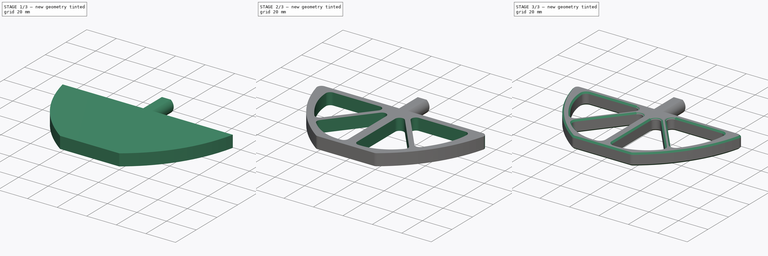
[diagram: build sequence overview — one tinted view per stage of 3, left to right]
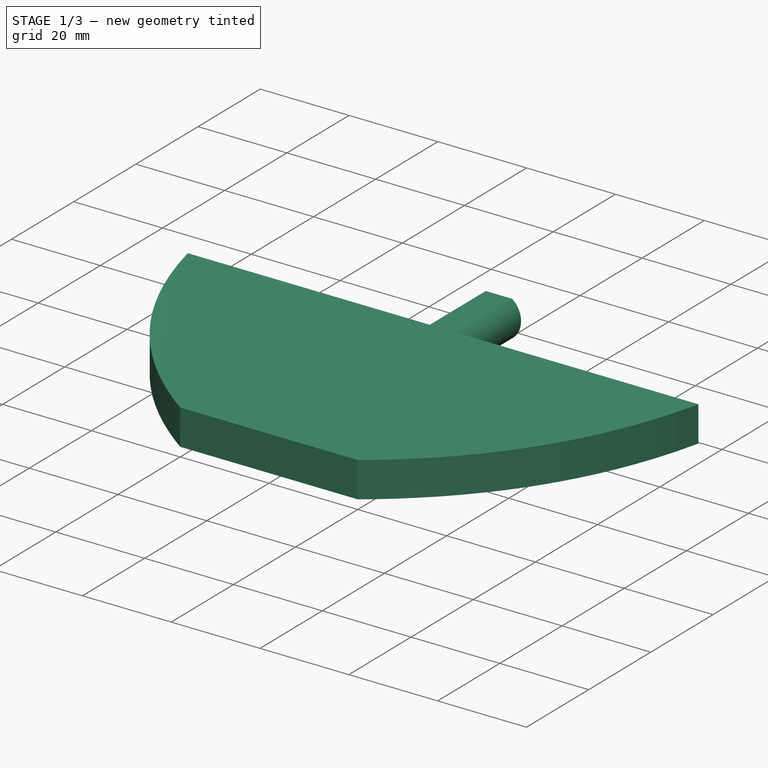
[diagram: stage 1 of 3 — iso view after this stage's code; geometry added in this stage tinted green]
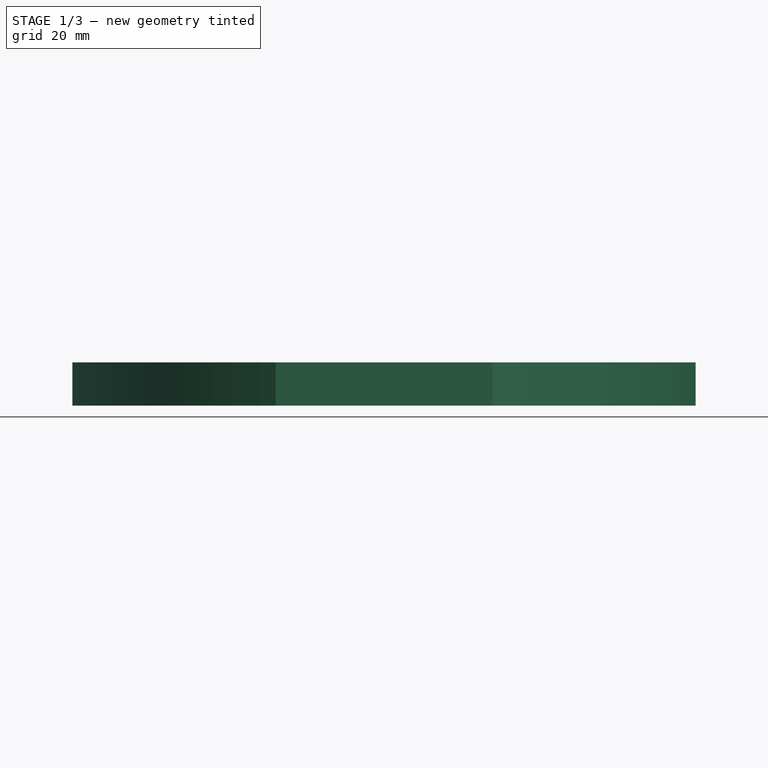
[diagram: stage 1 of 3 — front view after this stage's code; geometry added in this stage tinted green]
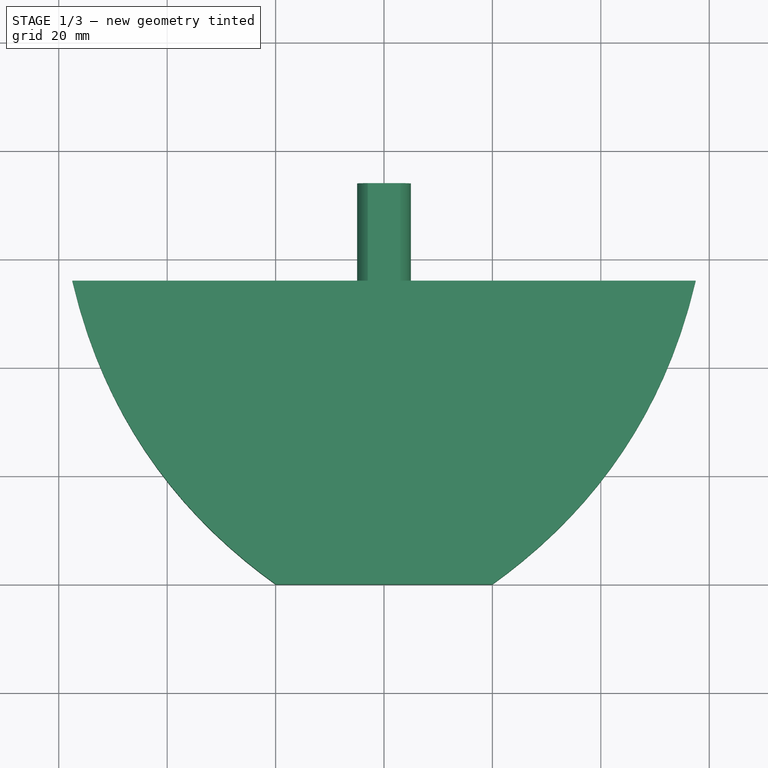
[diagram: stage 1 of 3 — top view after this stage's code; geometry added in this stage tinted green]
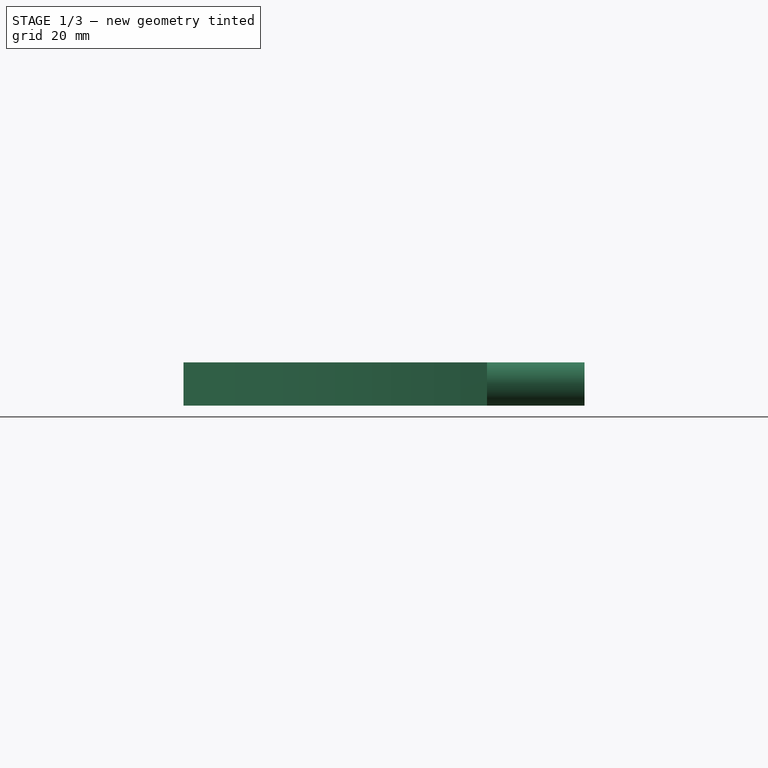
[diagram: stage 1 of 3 — right view after this stage's code; geometry added in this stage tinted green]
FCSTD DOCUMENT  (FreeCAD 0.18R16093 (Git))
Label: sorbetiere_pale
License: All rights reserved
LicenseURL: http://en.wikipedia.org/wiki/All_rights_reserved
objects: Sketcher::SketchObject×3, PartDesign::Pocket×2, PartDesign::Chamfer×2, PartDesign::Pad×1, PartDesign::Fillet×1, PartDesign::Body×1
note: 13 computed .brp shape members not serialized (recipe doc carries the construction recipe); baked Part::Feature solids carry a one-line shape summary decoded from their .brp

FEATURE [Sketcher::SketchObject] Sketch
  MapMode = 5
  Support = -> [XY_Plane]
  sketch-geometry (21):
    g0: LineSegment StartX=0 StartY=74 StartZ=0 EndX=5 EndY=74 EndZ=0
    g1: LineSegment StartX=5 StartY=74 StartZ=0 EndX=5 EndY=56 EndZ=0
    g2: LineSegment StartX=5 StartY=56 StartZ=0 EndX=57.5 EndY=56 EndZ=0
    g3: LineSegment StartX=0 StartY=0 StartZ=0 EndX=20 EndY=0 EndZ=0
    g4: Circle [constr] CenterX=57.5 CenterY=56 CenterZ=0 NormalX=0 NormalY=0 NormalZ=1 AngleXU=0 Radius=6
    g5: Circle [constr] CenterX=49.2674 CenterY=20.977 CenterZ=0 NormalX=0 NormalY=0 NormalZ=1 AngleXU=0 Radius=6
    g6: Circle [constr] CenterX=20 CenterY=0 CenterZ=0 NormalX=0 NormalY=0 NormalZ=1 AngleXU=0 Radius=6
    g7: BSplineCurve PolesCount=3 KnotsCount=2 Degree=2 IsPeriodic=0
    g8: GeomPoint [constr] X=57.5 Y=56 Z=0
    g9: GeomPoint [constr] X=20 Y=0 Z=0
    g10: LineSegment [constr] StartX=0 StartY=96.7919 StartZ=0 EndX=0 EndY=-52.7797 EndZ=0
    g11: LineSegment StartX=0 StartY=74 StartZ=0 EndX=-5 EndY=74 EndZ=0
    g12: LineSegment StartX=-5 StartY=74 StartZ=0 EndX=-5 EndY=56 EndZ=0
    g13: LineSegment StartX=-5 StartY=56 StartZ=0 EndX=-57.5 EndY=56 EndZ=0
    g14: LineSegment StartX=0 StartY=0 StartZ=0 EndX=-20 EndY=0 EndZ=0
    g15: Circle [constr] CenterX=-57.5 CenterY=56 CenterZ=0 NormalX=0 NormalY=0 NormalZ=1 AngleXU=0 Radius=6
    g16: Circle [constr] CenterX=-49.2674 CenterY=20.977 CenterZ=0 NormalX=0 NormalY=0 NormalZ=1 AngleXU=0 Radius=6
    g17: Circle [constr] CenterX=-20 CenterY=0 CenterZ=0 NormalX=0 NormalY=0 NormalZ=1 AngleXU=0 Radius=6
    g18: BSplineCurve PolesCount=3 KnotsCount=2 Degree=2 IsPeriodic=0
    g19: GeomPoint [constr] X=-57.5 Y=56 Z=0
    g20: GeomPoint [constr] X=-20 Y=0 Z=0
  constraints (36):
    c: Coincident(g0,g1)
    c: Vertical(g1)
    c: Horizontal(g0)
    c: DistanceX(g0,g0) = 5
    c: DistanceY(g1,g1) = 18
    c: PointOnObject(g0,g-2)
    c: Horizontal(g2)
    c: Coincident(g1,g2)
    c: DistanceX(g-1,g2) = 57.5
    c: Horizontal(g3)
    c: Coincident(g3,g-1)
    c: DistanceX(g-1,g3) = 20
    c: Radius(g4) = 6
    c: Equal(g4,g5)
    c: Equal(g4,g6)
    c: InternalAlignment(g4,g7)
    c: InternalAlignment(g5,g7)
    c: InternalAlignment(g6,g7)
    c: InternalAlignment(g8,g7)
    c: InternalAlignment(g9,g7)
    c: Coincident(g7,g2)
    c: Coincident(g3,g7)
    c: DistanceY(g-1,g1) = 56
    c: Vertical(g10)
    c: PointOnObject(g10,g-2)
    c: Coincident(g11,g12)
    c: Vertical(g12)
    c: Horizontal(g11)
    c: Horizontal(g13)
    c: Coincident(g12,g13)
    c: Horizontal(g14)
    c: Radius(g15) = 6
    c: Equal(g15,g16)
    c: Equal(g15,g17)
    c: Coincident(g18,g13)
    c: Coincident(g14,g18)
FEATURE [PartDesign::Pad] Pad  label="Volume principal"
  Length = 8
  Length2 = 100
  Profile = -> Sketch
  Type = 0
FEATURE [Sketcher::SketchObject] Sketch001
  ExternalGeometry = -> [Pad]
  MapMode = 5
  Placement = pos=(0,74,0) rot=(0,0.707107,0.707107;3.14159rad)
  Support = -> [Pad]
  sketch-geometry (11):
    g0: LineSegment StartX=2e-16 StartY=8 StartZ=0 EndX=-3 EndY=8 EndZ=0
    g1: ArcOfCircle CenterX=0.1 CenterY=4 CenterZ=0 NormalX=0 NormalY=0 NormalZ=1 AngleXU=0 Radius=5.06063 StartAngle=2.23011 EndAngle=4.05308
    g2: LineSegment StartX=-3 StartY=2.2e-15 StartZ=0 EndX=0 EndY=2.2e-15 EndZ=0
    g3: LineSegment [constr] StartX=0 StartY=13.4081 StartZ=0 EndX=0 EndY=-5.11794 EndZ=0
    g4: LineSegment StartX=-2e-16 StartY=8 StartZ=0 EndX=3 EndY=8 EndZ=0
    g5: ArcOfCircle CenterX=-0.1 CenterY=4 CenterZ=0 NormalX=0 NormalY=0 NormalZ=1 AngleXU=0 Radius=5.06063 StartAngle=5.3717 EndAngle=7.19467
    g6: LineSegment StartX=3 StartY=-9e-16 StartZ=0 EndX=0 EndY=-9e-16 EndZ=0
    g7: LineSegment StartX=-9.55783 StartY=10.4802 StartZ=0 EndX=10.0787 EndY=10.4802 EndZ=0
    g8: LineSegment StartX=10.0787 StartY=10.4802 StartZ=0 EndX=10.0787 EndY=-3.90643 EndZ=0
    g9: LineSegment StartX=10.0787 StartY=-3.90643 StartZ=0 EndX=-9.55783 EndY=-3.90643 EndZ=0
    g10: LineSegment StartX=-9.55783 StartY=-3.90643 StartZ=0 EndX=-9.55783 EndY=10.4802 EndZ=0
  constraints (26):
    c: Horizontal(g2)
    c: Horizontal(g0)
    c: Equal(g0,g2)
    c: DistanceX(g-3,g0) = 2
    c: DistanceX(g0,g0) = 3
    c: DistanceX(g-4,g2) = 2
    c: PointOnObject(g2,g-1)
    c: Coincident(g2,g1)
    c: PointOnObject(g0,g-3)
    c: Coincident(g1,g0)
    c: DistanceX(g-1,g1) = 0.1
    c: Vertical(g3)
    c: PointOnObject(g3,g-2)
    c: Horizontal(g6)
    c: Horizontal(g4)
    c: Equal(g4,g6)
    c: Coincident(g6,g5)
    c: Coincident(g5,g4)
    c: Coincident(g7,g8)
    c: Coincident(g8,g9)
    c: Coincident(g9,g10)
    c: Coincident(g10,g7)
    c: Horizontal(g7)
    c: Horizontal(g9)
    c: Vertical(g8)
    c: Vertical(g10)
FEATURE [PartDesign::Pocket] Pocket  label="Arbre arrière"
  BaseFeature = -> Pad
  Length = 18
  Length2 = 100
  Profile = -> Sketch001
  Type = 0
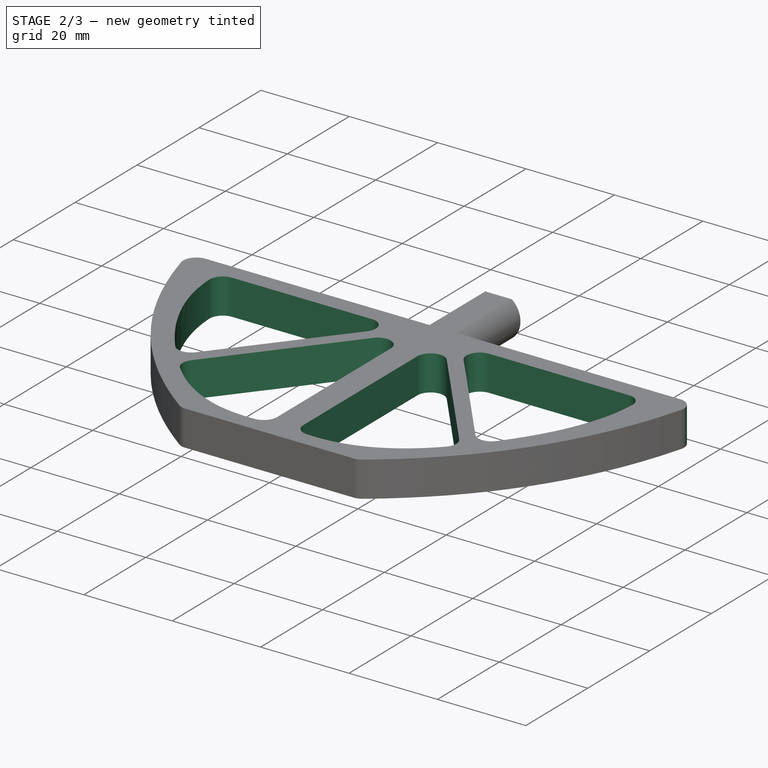
[diagram: stage 2 of 3 — iso view after this stage's code; geometry added in this stage tinted green]
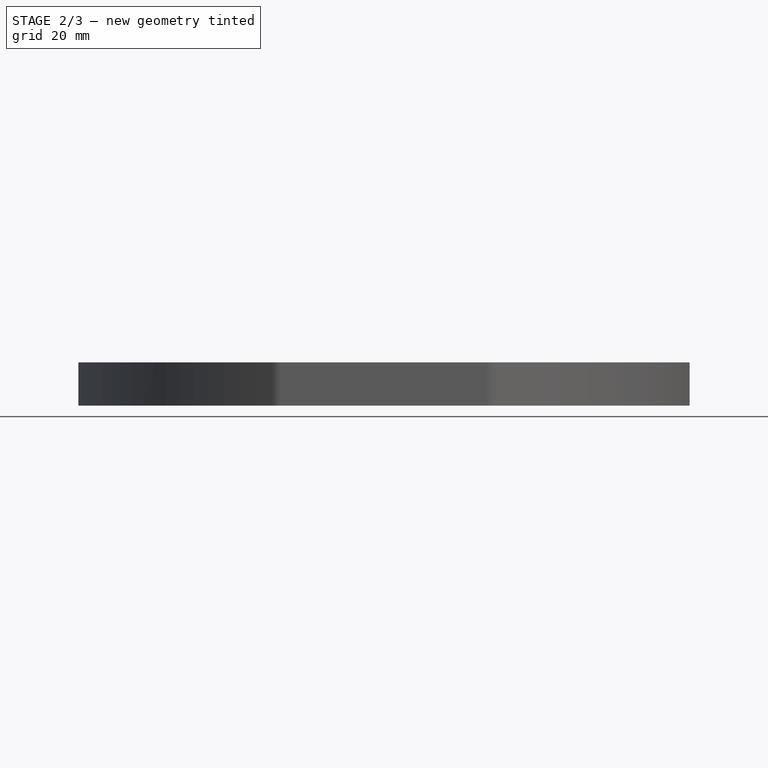
[diagram: stage 2 of 3 — front view after this stage's code; geometry added in this stage tinted green]
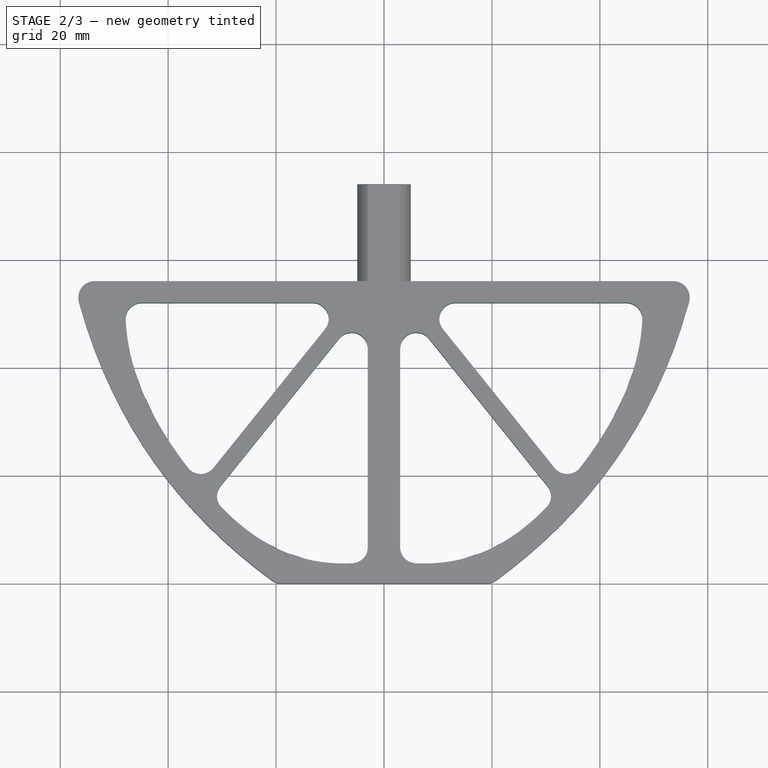
[diagram: stage 2 of 3 — top view after this stage's code; geometry added in this stage tinted green]
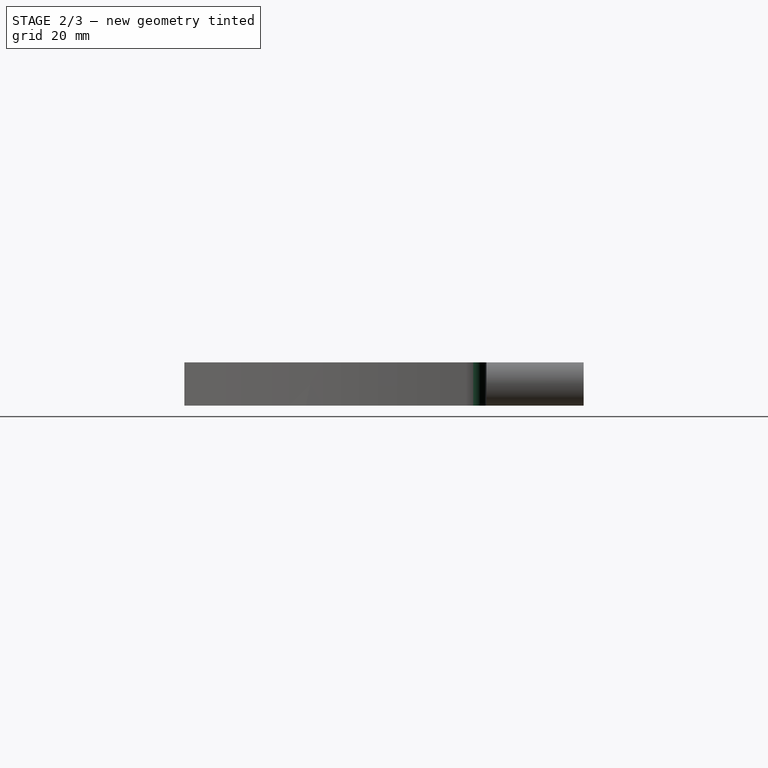
[diagram: stage 2 of 3 — right view after this stage's code; geometry added in this stage tinted green]
FEATURE [Sketcher::SketchObject] Sketch002
  ExternalGeometry = -> [Pocket]
  MapMode = 5
  Placement = pos=(0,0,8) rot=(0,0,1;0rad)
  Support = -> [Pocket]
  sketch-geometry (33):
    g0: LineSegment StartX=3 StartY=52 StartZ=0 EndX=3 EndY=4 EndZ=0
    g1: LineSegment StartX=31.8948 StartY=16.0596 StartZ=0 EndX=3 EndY=52 EndZ=0
    g2: LineSegment StartX=7 StartY=52 StartZ=0 EndX=47.8658 EndY=52 EndZ=0
    g3: LineSegment StartX=33.948 StartY=18.4811 StartZ=0 EndX=7 EndY=52 EndZ=0
    g4: LineSegment [constr] StartX=0 StartY=62.5342 StartZ=0 EndX=0 EndY=-8.25644 EndZ=0
    g5: Circle [constr] CenterX=47.8658 CenterY=52 CenterZ=0 NormalX=0 NormalY=0 NormalZ=1 AngleXU=0 Radius=3
    g6: Circle [constr] CenterX=48.6286 CenterY=35.8636 CenterZ=0 NormalX=0 NormalY=0 NormalZ=1 AngleXU=0 Radius=3
    g7: Circle [constr] CenterX=33.948 CenterY=18.4811 CenterZ=0 NormalX=0 NormalY=0 NormalZ=1 AngleXU=0 Radius=3
    g8: BSplineCurve PolesCount=3 KnotsCount=2 Degree=2 IsPeriodic=0
    g9: GeomPoint [constr] X=47.8658 Y=52 Z=0
    g10: GeomPoint [constr] X=33.948 Y=18.4811 Z=0
    g11: Circle [constr] CenterX=31.8948 CenterY=16.0596 CenterZ=0 NormalX=0 NormalY=0 NormalZ=1 AngleXU=0 Radius=1
    g12: Circle [constr] CenterX=19.4826 CenterY=1.64693 CenterZ=0 NormalX=0 NormalY=0 NormalZ=1 AngleXU=0 Radius=1
    g13: Circle [constr] CenterX=3 CenterY=4 CenterZ=0 NormalX=0 NormalY=0 NormalZ=1 AngleXU=0 Radius=1
    g14: BSplineCurve PolesCount=3 KnotsCount=2 Degree=2 IsPeriodic=0
    g15: GeomPoint [constr] X=31.8948 Y=16.0596 Z=0
    g16: GeomPoint [constr] X=3 Y=4 Z=0
    g17: LineSegment StartX=-3 StartY=52 StartZ=0 EndX=-3 EndY=4 EndZ=0
    g18: LineSegment StartX=-31.8948 StartY=16.0596 StartZ=0 EndX=-3 EndY=52 EndZ=0
    g19: LineSegment StartX=-7 StartY=52 StartZ=0 EndX=-47.8658 EndY=52 EndZ=0
    g20: LineSegment StartX=-33.948 StartY=18.4811 StartZ=0 EndX=-7 EndY=52 EndZ=0
    g21: Circle [constr] CenterX=-47.8658 CenterY=52 CenterZ=0 NormalX=0 NormalY=0 NormalZ=1 AngleXU=0 Radius=3
    g22: Circle [constr] CenterX=-48.6286 CenterY=35.8636 CenterZ=0 NormalX=0 NormalY=0 NormalZ=1 AngleXU=0 Radius=3
    g23: Circle [constr] CenterX=-33.948 CenterY=18.4811 CenterZ=0 NormalX=0 NormalY=0 NormalZ=1 AngleXU=0 Radius=3
    g24: BSplineCurve PolesCount=3 KnotsCount=2 Degree=2 IsPeriodic=0
    g25: GeomPoint [constr] X=-47.8658 Y=52 Z=0
    g26: GeomPoint [constr] X=-33.948 Y=18.4811 Z=0
    g27: Circle [constr] CenterX=-31.8948 CenterY=16.0596 CenterZ=0 NormalX=0 NormalY=0 NormalZ=1 AngleXU=0 Radius=1
    g28: Circle [constr] CenterX=-19.4826 CenterY=1.64693 CenterZ=0 NormalX=0 NormalY=0 NormalZ=1 AngleXU=0 Radius=1
    g29: Circle [constr] CenterX=-3 CenterY=4 CenterZ=0 NormalX=0 NormalY=0 NormalZ=1 AngleXU=0 Radius=1
    g30: BSplineCurve PolesCount=3 KnotsCount=2 Degree=2 IsPeriodic=0
    g31: GeomPoint [constr] X=-31.8948 Y=16.0596 Z=0
    g32: GeomPoint [constr] X=-3 Y=4 Z=0
  constraints (46):
    c: Vertical(g4)
    c: PointOnObject(g4,g-2)
    c: Coincident(g0,g1)
    c: Coincident(g2,g3)
    c: DistanceY(g-1,g0) = 4
    c: DistanceY(g0,g-3) = 4
    c: Vertical(g0)
    c: DistanceX(g-1,g0) = 3
    c: DistanceY(g2,g-3) = 4
    c: DistanceY(g2,g-3) = 4
    c: Radius(g5) = 3
    c: Equal(g5,g6)
    c: Equal(g5,g7)
    c: InternalAlignment(g5,g8)
    c: InternalAlignment(g6,g8)
    c: InternalAlignment(g7,g8)
    c: InternalAlignment(g9,g8)
    c: InternalAlignment(g10,g8)
    c: Radius(g11) = 1
    c: Equal(g11,g12)
    c: Equal(g11,g13)
    c: InternalAlignment(g11,g14)
    c: InternalAlignment(g12,g14)
    c: InternalAlignment(g13,g14)
    c: InternalAlignment(g15,g14)
    c: InternalAlignment(g16,g14)
    c: Parallel(g3,g1)
    c: Coincident(g2,g8)
    c: Coincident(g8,g3)
    c: Coincident(g14,g1)
    c: Coincident(g14,g0)
    c: DistanceX(g0,g2) = 4
    c: Coincident(g17,g18)
    c: Coincident(g19,g20)
    c: Vertical(g17)
    c: Radius(g21) = 3
    c: Equal(g21,g22)
    c: Equal(g21,g23)
    c: Radius(g27) = 1
    c: Equal(g27,g28)
    c: Equal(g27,g29)
    c: Parallel(g20,g18)
    c: Coincident(g19,g24)
    c: Coincident(g24,g20)
    c: Coincident(g30,g18)
    c: Coincident(g30,g17)
FEATURE [PartDesign::Pocket] Pocket001  label="evidemment central"
  BaseFeature = -> Pocket
  Length = 5
  Length2 = 100
  Profile = -> Sketch002
  Type = 1
FEATURE [PartDesign::Fillet] Fillet  label="Coins arrondis"
  Base = -> Pocket001 [Edge67,Edge70,Edge82,Edge83,Edge76,Edge78,Edge74,Edge81,Edge84,Edge80,Edge77,Edge75,Edge73,Edge79,Edge69,Edge72]
  BaseFeature = -> Pocket001
  Radius = 3
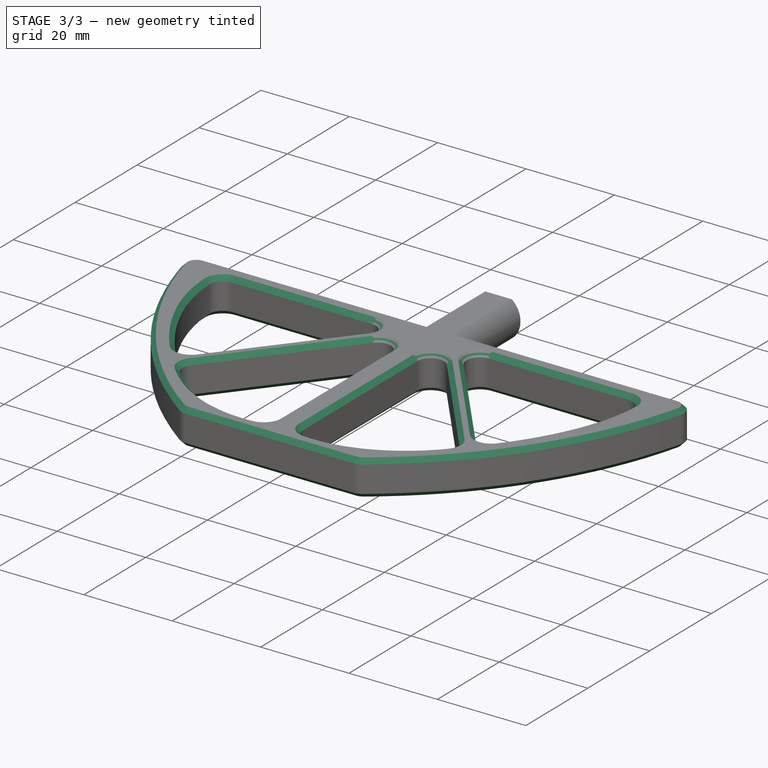
[diagram: stage 3 of 3 — iso view after this stage's code; geometry added in this stage tinted green]
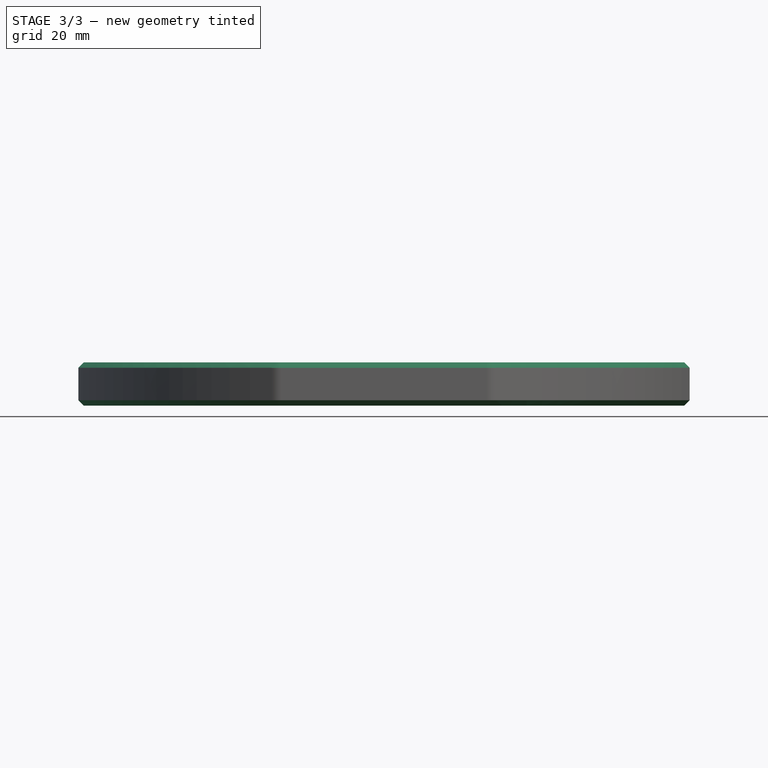
[diagram: stage 3 of 3 — front view after this stage's code; geometry added in this stage tinted green]
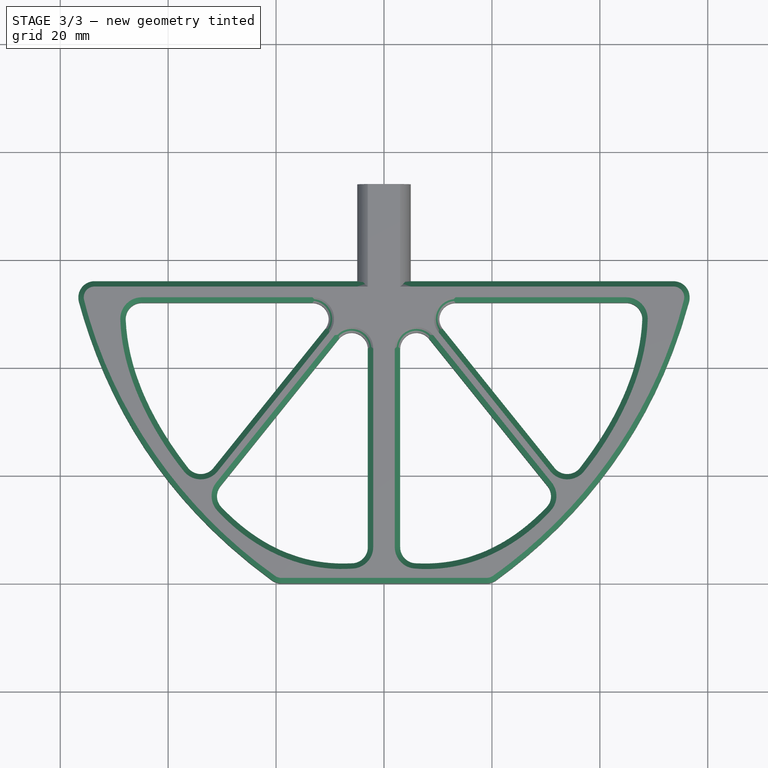
[diagram: stage 3 of 3 — top view after this stage's code; geometry added in this stage tinted green]
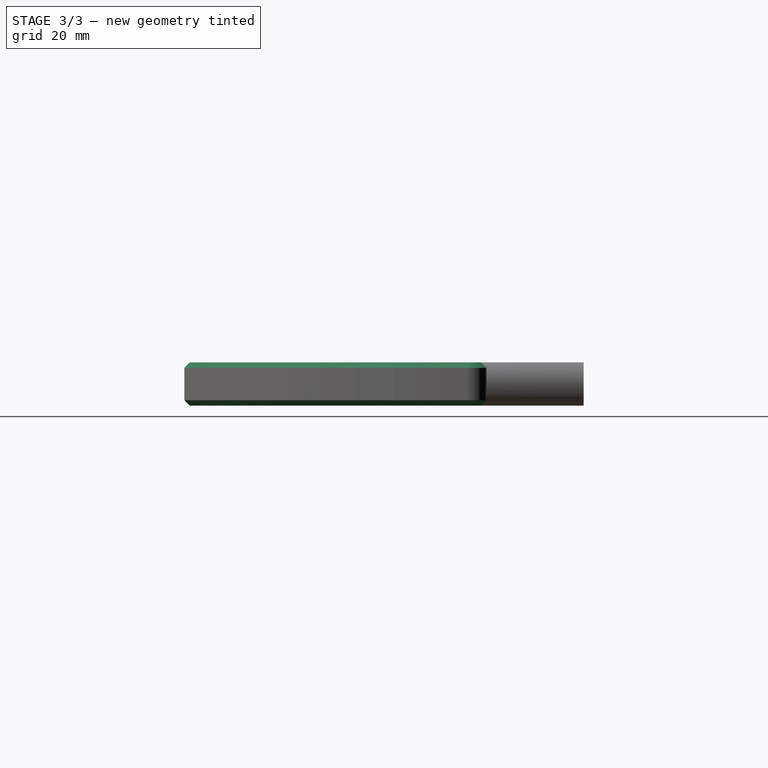
[diagram: stage 3 of 3 — right view after this stage's code; geometry added in this stage tinted green]
FEATURE [PartDesign::Chamfer] Chamfer  label="Chanfrein base"
  Base = -> Fillet [Face1]
  BaseFeature = -> Fillet
  Size = 1
FEATURE [PartDesign::Chamfer] Chamfer001  label="Chanfrein sup"
  Base = -> Chamfer [Edge154,Edge158,Edge162,Edge163,Edge159,Edge149,Edge146,Edge156,Edge202,Edge190,Edge166,Edge178]
  BaseFeature = -> Chamfer
  Size = 1
FEATURE [PartDesign::Body] Body
  Group = -> [Sketch,Pad,Sketch001,Pocket,Sketch002,Pocket001,Fillet,Chamfer,Chamfer001]
  Origin = -> Origin
  Tip = -> Chamfer001
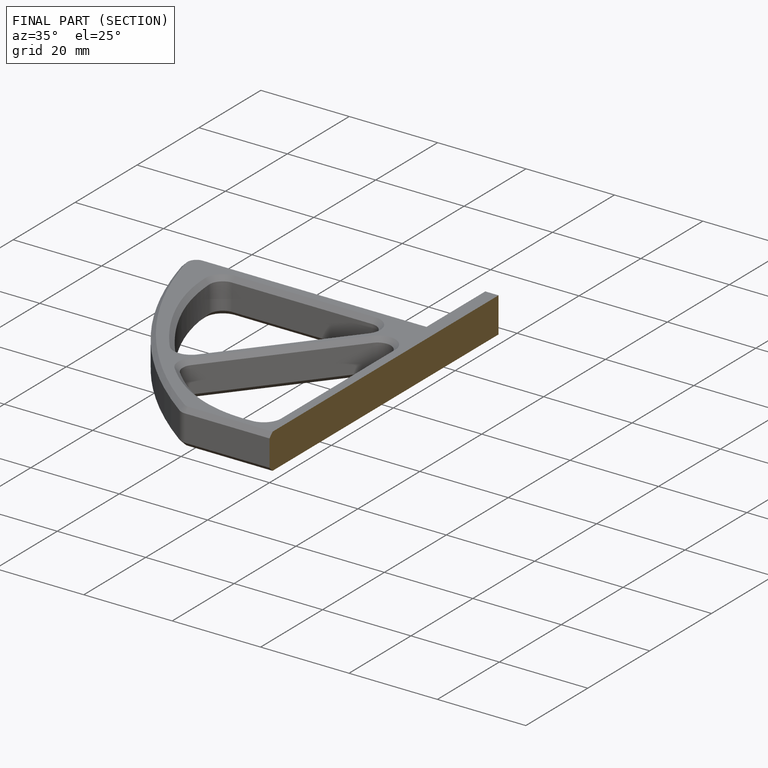
[diagram: finished part — half-section view (interior)]
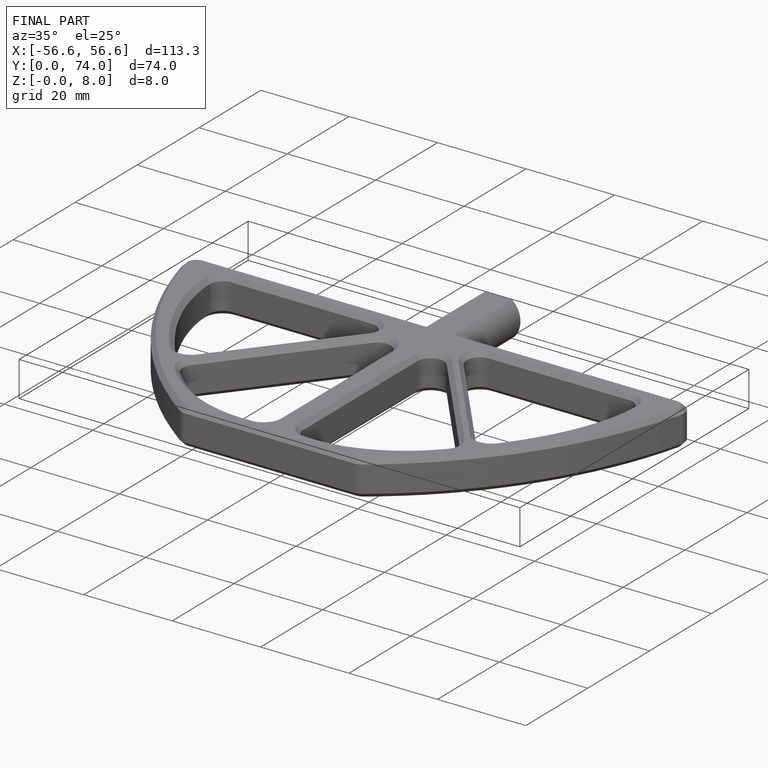
[diagram: finished part — iso view with bounding-box wireframe]
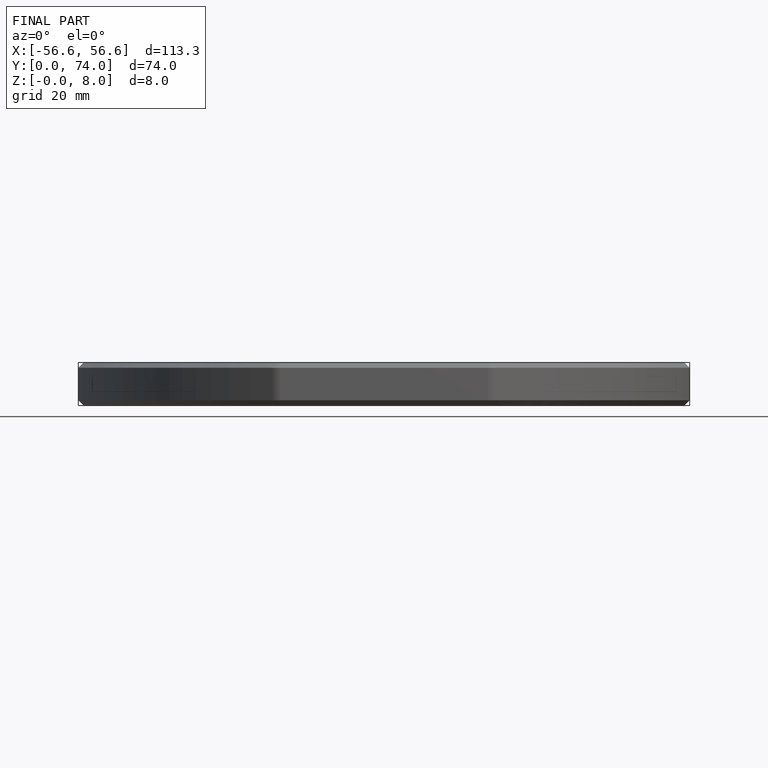
[diagram: finished part — front view with bounding-box wireframe]
